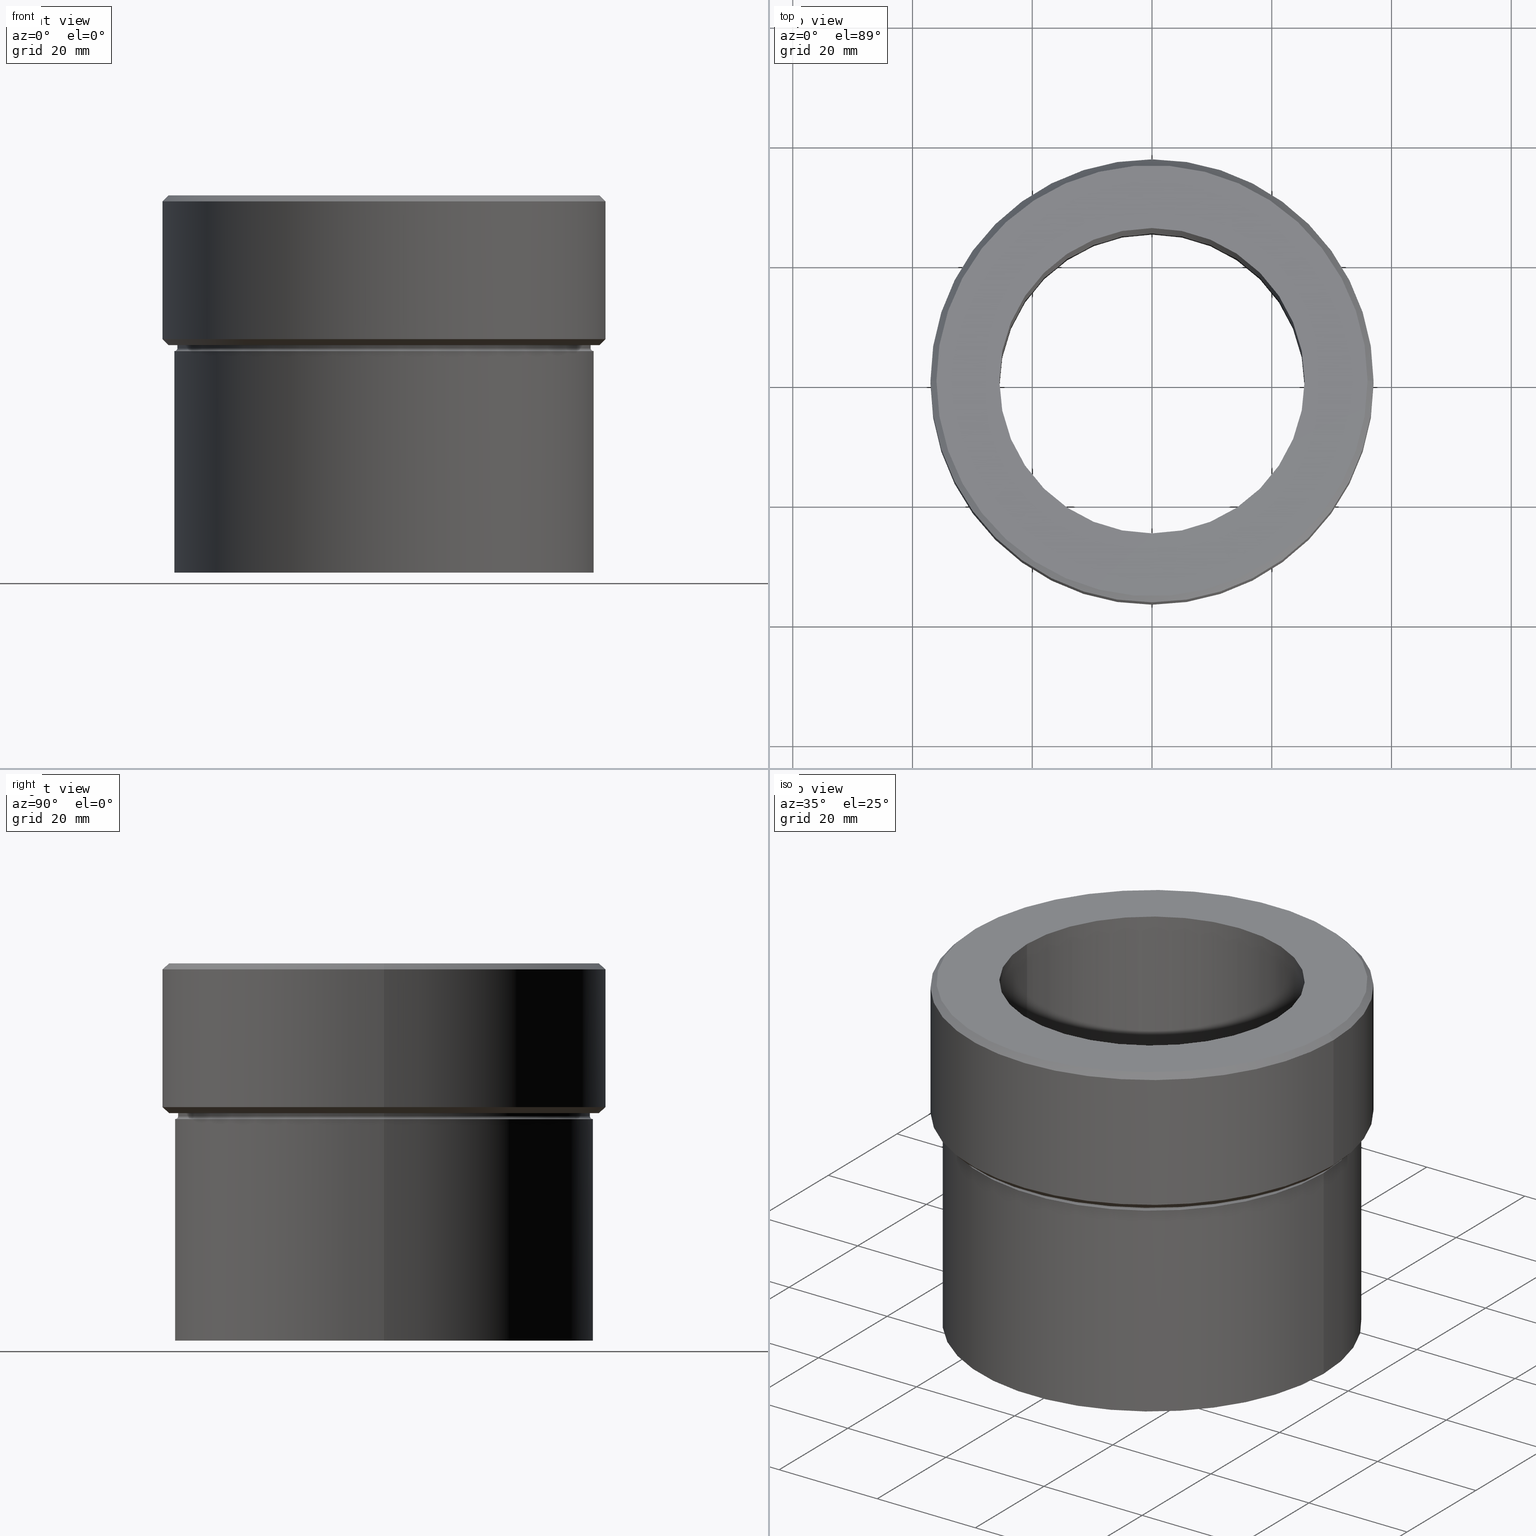
[diagram: canonical four-view strip — front | top / right | iso, engineering-drawing reading convention]
A machine part, canonical four-view strip (front | top / right | iso — engineering-drawing reading convention). The complete STEP part file that produces these views, byte-faithful:
ISO-10303-21;
HEADER;
FILE_DESCRIPTION (( 'STEP AP203' ),
    '1' );
FILE_NAME ('8586.STEP',
    '2024-01-08T12:23:47',
    ( '' ),
    ( '' ),
    'SwSTEP 2.0',
    'SolidWorks 2019',
    '' );
FILE_SCHEMA (( 'CONFIG_CONTROL_DESIGN' ));
ENDSEC;

DATA;
#1 = FACE_OUTER_BOUND ( 'NONE', #360, .T. ) ;
#2 = ORIENTED_EDGE ( 'NONE', *, *, #18, .T. ) ;
#3 = FACE_OUTER_BOUND ( 'NONE', #245, .T. ) ;
#4 = EDGE_CURVE ( 'NONE', #83, #497, #168, .T. ) ;
#5 = CONICAL_SURFACE ( 'NONE', #395, 37.00000000000000000, 0.7853981633974517207 ) ;
#6 = ORIENTED_EDGE ( 'NONE', *, *, #334, .T. ) ;
#7 = CARTESIAN_POINT ( 'NONE',  ( 0.000000000000000000, 0.000000000000000000, -0.9999999999999870104 ) ) ;
#8 = ORIENTED_EDGE ( 'NONE', *, *, #285, .F. ) ;
#9 = DIRECTION ( 'NONE',  ( 1.000000000000000000, 0.000000000000000000, 0.000000000000000000 ) ) ;
#10 = ORIENTED_EDGE ( 'NONE', *, *, #242, .F. ) ;
#11 = PERSON_AND_ORGANIZATION ( #431, #462 ) ;
#12 = CARTESIAN_POINT ( 'NONE',  ( 25.50000000000000000, 0.000000000000000000, -63.00000000000000000 ) ) ;
#13 = EDGE_CURVE ( 'NONE', #233, #197, #140, .T. ) ;
#14 = PERSON_AND_ORGANIZATION_ROLE ( 'classification_officer' ) ;
#15 = DIRECTION ( 'NONE',  ( -0.000000000000000000, -0.000000000000000000, 1.000000000000000000 ) ) ;
#16 = PLANE ( 'NONE',  #512 ) ;
#17 = APPROVAL_DATE_TIME ( #291, #391 ) ;
#18 = EDGE_CURVE ( 'NONE', #502, #113, #528, .T. ) ;
#19 = CARTESIAN_POINT ( 'NONE',  ( -35.00000000000000000, 4.286263797015736496E-15, -63.00000000000000000 ) ) ;
#20 = VECTOR ( 'NONE', #241, 1000.000000000000000 ) ;
#21 = AXIS2_PLACEMENT_3D ( 'NONE', #22, #100, #174 ) ;
#22 = CARTESIAN_POINT ( 'NONE',  ( 0.000000000000000000, 0.000000000000000000, 0.000000000000000000 ) ) ;
#23 = FACE_OUTER_BOUND ( 'NONE', #148, .T. ) ;
#24 = ORIENTED_EDGE ( 'NONE', *, *, #231, .T. ) ;
#25 = DATE_AND_TIME ( #235, #381 ) ;
#26 = CARTESIAN_POINT ( 'NONE',  ( 0.000000000000000000, 0.000000000000000000, -63.00000000000000000 ) ) ;
#27 = ADVANCED_FACE ( 'NONE', ( #336 ), #296, .T. ) ;
#28 = CIRCLE ( 'NONE', #97, 34.50000000000000000 ) ;
#29 = DIRECTION ( 'NONE',  ( 1.000000000000000000, 0.000000000000000000, 0.000000000000000000 ) ) ;
#30 = CIRCLE ( 'NONE', #141, 34.50000000000000000 ) ;
#31 = VERTEX_POINT ( 'NONE', #263 ) ;
#32 = FACE_OUTER_BOUND ( 'NONE', #315, .T. ) ;
#33 = PRODUCT_DEFINITION_SHAPE ( 'NONE', 'NONE',  #170 ) ;
#34 = DIRECTION ( 'NONE',  ( 1.000000000000000000, 0.000000000000000000, 0.000000000000000000 ) ) ;
#35 = PRODUCT_RELATED_PRODUCT_CATEGORY ( 'detail', '', ( #445 ) ) ;
#36 = ORIENTED_EDGE ( 'NONE', *, *, #4, .F. ) ;
#37 = DIRECTION ( 'NONE',  ( -0.000000000000000000, -0.000000000000000000, 1.000000000000000000 ) ) ;
#38 = DIRECTION ( 'NONE',  ( 1.000000000000000000, 0.000000000000000000, 0.000000000000000000 ) ) ;
#39 = LOCAL_TIME ( 13, 23, 47.00000000000000000, #176 ) ;
#40 = CARTESIAN_POINT ( 'NONE',  ( 34.50000000000000000, 0.000000000000000000, -25.00000000000000000 ) ) ;
#41 = VERTEX_POINT ( 'NONE', #53 ) ;
#42 = APPROVAL ( #132, 'NEUR�EN�' ) ;
#43 = DIRECTION ( 'NONE',  ( 0.000000000000000000, 0.000000000000000000, -1.000000000000000000 ) ) ;
#44 = EDGE_LOOP ( 'NONE', ( #358, #520, #109, #105 ) ) ;
#45 = LINE ( 'NONE', #450, #20 ) ;
#46 = EDGE_LOOP ( 'NONE', ( #279, #518, #448, #405 ) ) ;
#47 = AXIS2_PLACEMENT_3D ( 'NONE', #187, #154, #355 ) ;
#48 = CARTESIAN_POINT ( 'NONE',  ( 0.000000000000000000, 0.000000000000000000, -80.00000000000000000 ) ) ;
#49 = EDGE_LOOP ( 'NONE', ( #396, #456 ) ) ;
#50 = FACE_OUTER_BOUND ( 'NONE', #118, .T. ) ;
#51 = EDGE_CURVE ( 'NONE', #41, #31, #216, .T. ) ;
#52 = PERSON_AND_ORGANIZATION_ROLE ( 'design_supplier' ) ;
#53 = CARTESIAN_POINT ( 'NONE',  ( 36.00000000000002132, 4.469960816887840007E-15, 0.000000000000000000 ) ) ;
#54 = CONICAL_SURFACE ( 'NONE', #388, 36.00000000000002132, 0.7853981633974447263 ) ;
#55 = AXIS2_PLACEMENT_3D ( 'NONE', #147, #523, #68 ) ;
#56 = FACE_BOUND ( 'NONE', #439, .T. ) ;
#57 = AXIS2_PLACEMENT_3D ( 'NONE', #180, #134, #420 ) ;
#58 = CYLINDRICAL_SURFACE ( 'NONE', #209, 34.50000000000000000 ) ;
#59 = EDGE_CURVE ( 'NONE', #83, #390, #254, .T. ) ;
#60 = APPLICATION_PROTOCOL_DEFINITION ( 'international standard', 'config_control_design', 1994, #62 ) ;
#61 = DIRECTION ( 'NONE',  ( -1.000000000000000000, 0.000000000000000000, -0.000000000000000000 ) ) ;
#62 = APPLICATION_CONTEXT ( 'configuration controlled 3d designs of mechanical parts and assemblies' ) ;
#63 = CARTESIAN_POINT ( 'NONE',  ( 0.000000000000000000, 0.000000000000000000, 0.000000000000000000 ) ) ;
#64 = VECTOR ( 'NONE', #484, 1000.000000000000000 ) ;
#65 = CIRCLE ( 'NONE', #503, 34.50000000000000000 ) ;
#66 = CARTESIAN_POINT ( 'NONE',  ( 25.50000000000000000, 0.000000000000000000, 0.000000000000000000 ) ) ;
#67 = DATE_TIME_ROLE ( 'classification_date' ) ;
#68 = DIRECTION ( 'NONE',  ( -1.000000000000000000, 0.000000000000000000, 0.000000000000000000 ) ) ;
#69 = EDGE_CURVE ( 'NONE', #313, #274, #444, .T. ) ;
#70 = LINE ( 'NONE', #232, #412 ) ;
#71 = ORIENTED_EDGE ( 'NONE', *, *, #350, .T. ) ;
#72 = AXIS2_PLACEMENT_3D ( 'NONE', #399, #104, #389 ) ;
#73 = DIRECTION ( 'NONE',  ( -0.7071067811865500152, 8.659560562354962440E-17, 0.7071067811865451302 ) ) ;
#74 = VECTOR ( 'NONE', #499, 1000.000000000000000 ) ;
#75 = CC_DESIGN_PERSON_AND_ORGANIZATION_ASSIGNMENT ( #297, #91, ( #170 ) ) ;
#76 = CARTESIAN_POINT ( 'NONE',  ( -25.50000000000000000, 3.122849337825750222E-15, 0.000000000000000000 ) ) ;
#77 = VERTEX_POINT ( 'NONE', #12 ) ;
#78 = FACE_OUTER_BOUND ( 'NONE', #454, .T. ) ;
#79 = ORIENTED_EDGE ( 'NONE', *, *, #18, .F. ) ;
#80 = DIRECTION ( 'NONE',  ( -0.000000000000000000, -0.000000000000000000, 1.000000000000000000 ) ) ;
#81 = ORIENTED_EDGE ( 'NONE', *, *, #514, .F. ) ;
#82 = DIRECTION ( 'NONE',  ( 1.000000000000000000, 0.000000000000000000, 0.000000000000000000 ) ) ;
#83 = VERTEX_POINT ( 'NONE', #378 ) ;
#84 = DIRECTION ( 'NONE',  ( -0.000000000000000000, -0.000000000000000000, 1.000000000000000000 ) ) ;
#85 = ORIENTED_EDGE ( 'NONE', *, *, #192, .T. ) ;
#86 = CYLINDRICAL_SURFACE ( 'NONE', #495, 25.50000000000000000 ) ;
#87 = ORIENTED_EDGE ( 'NONE', *, *, #468, .F. ) ;
#88 = APPROVAL_DATE_TIME ( #501, #42 ) ;
#89 = ADVANCED_FACE ( 'NONE', ( #261 ), #306, .T. ) ;
#90 = DIRECTION ( 'NONE',  ( -0.000000000000000000, -0.000000000000000000, 1.000000000000000000 ) ) ;
#91 = PERSON_AND_ORGANIZATION_ROLE ( 'creator' ) ;
#92 = DIRECTION ( 'NONE',  ( 0.000000000000000000, 0.000000000000000000, -1.000000000000000000 ) ) ;
#93 = CALENDAR_DATE ( 2024, 8, 1 ) ;
#94 = CARTESIAN_POINT ( 'NONE',  ( 0.000000000000000000, 0.000000000000000000, -25.00000000000000000 ) ) ;
#95 = VECTOR ( 'NONE', #207, 1000.000000000000114 ) ;
#96 = EDGE_CURVE ( 'NONE', #251, #400, #65, .T. ) ;
#97 = AXIS2_PLACEMENT_3D ( 'NONE', #151, #228, #102 ) ;
#98 = COORDINATED_UNIVERSAL_TIME_OFFSET ( 1, 0, .AHEAD. ) ;
#99 = APPROVAL_PERSON_ORGANIZATION ( #332, #42, #461 ) ;
#100 = DIRECTION ( 'NONE',  ( -0.000000000000000000, -0.000000000000000000, 1.000000000000000000 ) ) ;
#101 = DIRECTION ( 'NONE',  ( 1.000000000000000000, 0.000000000000000000, 0.000000000000000000 ) ) ;
#102 = DIRECTION ( 'NONE',  ( 1.000000000000000000, 0.000000000000000000, 0.000000000000000000 ) ) ;
#103 = ADVANCED_FACE ( 'NONE', ( #427 ), #387, .T. ) ;
#104 = DIRECTION ( 'NONE',  ( 0.000000000000000000, 0.000000000000000000, -1.000000000000000000 ) ) ;
#105 = ORIENTED_EDGE ( 'NONE', *, *, #309, .F. ) ;
#106 = CARTESIAN_POINT ( 'NONE',  ( 0.000000000000000000, 0.000000000000000000, -23.99999999999997158 ) ) ;
#107 = PERSON_AND_ORGANIZATION ( #431, #462 ) ;
#108 = DIRECTION ( 'NONE',  ( -1.000000000000000000, 0.000000000000000000, 0.000000000000000000 ) ) ;
#109 = ORIENTED_EDGE ( 'NONE', *, *, #13, .F. ) ;
#110 = EDGE_CURVE ( 'NONE', #365, #324, #175, .T. ) ;
#111 = CARTESIAN_POINT ( 'NONE',  ( -25.50000000000000000, 3.122849337825750222E-15, -63.00000000000000000 ) ) ;
#112 = CIRCLE ( 'NONE', #486, 35.00000000000000000 ) ;
#113 = VERTEX_POINT ( 'NONE', #177 ) ;
#114 = CC_DESIGN_APPROVAL ( #391, ( #170 ) ) ;
#115 = CARTESIAN_POINT ( 'NONE',  ( 35.00000000000000000, 0.000000000000000000, -25.50000000000000000 ) ) ;
#116 = ORIENTED_EDGE ( 'NONE', *, *, #69, .F. ) ;
#117 = LINE ( 'NONE', #250, #95 ) ;
#118 = EDGE_LOOP ( 'NONE', ( #79, #478, #125, #87 ) ) ;
#119 = FACE_OUTER_BOUND ( 'NONE', #213, .T. ) ;
#120 = CC_DESIGN_DATE_AND_TIME_ASSIGNMENT ( #429, #386, ( #170 ) ) ;
#121 = ORIENTED_EDGE ( 'NONE', *, *, #406, .T. ) ;
#122 = CIRCLE ( 'NONE', #234, 0.5000000000000004441 ) ;
#123 = UNCERTAINTY_MEASURE_WITH_UNIT (LENGTH_MEASURE( 1.000000000000000082E-05 ), #384, 'distance_accuracy_value', 'NONE');
#124 = DIRECTION ( 'NONE',  ( -1.000000000000000000, 1.224646799147349509E-16, 0.000000000000000000 ) ) ;
#125 = ORIENTED_EDGE ( 'NONE', *, *, #302, .F. ) ;
#126 = CARTESIAN_POINT ( 'NONE',  ( 0.000000000000000000, 0.000000000000000000, 0.000000000000000000 ) ) ;
#127 = EDGE_LOOP ( 'NONE', ( #36, #375, #6, #311 ) ) ;
#128 = APPROVAL ( #189, 'NEUR�EN�' ) ;
#129 = PERSON_AND_ORGANIZATION_ROLE ( 'design_owner' ) ;
#130 = ORIENTED_EDGE ( 'NONE', *, *, #51, .T. ) ;
#131 = LOCAL_TIME ( 13, 23, 47.00000000000000000, #98 ) ;
#132 = APPROVAL_STATUS ( 'not_yet_approved' ) ;
#133 = CARTESIAN_POINT ( 'NONE',  ( 0.000000000000000000, 0.000000000000000000, 0.000000000000000000 ) ) ;
#134 = DIRECTION ( 'NONE',  ( 0.000000000000000000, 0.000000000000000000, 1.000000000000000000 ) ) ;
#135 = ADVANCED_FACE ( 'NONE', ( #179 ), #326, .F. ) ;
#136 = DIRECTION ( 'NONE',  ( 0.7071067811865451302, 8.659560562354904508E-17, -0.7071067811865500152 ) ) ;
#137 = PERSON_AND_ORGANIZATION ( #431, #462 ) ;
#138 = DIRECTION ( 'NONE',  ( 0.000000000000000000, 0.000000000000000000, -1.000000000000000000 ) ) ;
#139 = AXIS2_PLACEMENT_3D ( 'NONE', #408, #163, #82 ) ;
#140 = CIRCLE ( 'NONE', #414, 35.00000000000000000 ) ;
#141 = AXIS2_PLACEMENT_3D ( 'NONE', #492, #453, #374 ) ;
#142 = APPLICATION_PROTOCOL_DEFINITION ( 'international standard', 'config_control_design', 1994, #169 ) ;
#143 = DIRECTION ( 'NONE',  ( 1.000000000000000000, 0.000000000000000000, 0.000000000000000000 ) ) ;
#144 = SHAPE_DEFINITION_REPRESENTATION ( #33, #413 ) ;
#145 = CARTESIAN_POINT ( 'NONE',  ( 0.000000000000000000, 0.000000000000000000, 0.000000000000000000 ) ) ;
#146 = ADVANCED_FACE ( 'NONE', ( #507 ), #58, .T. ) ;
#147 = CARTESIAN_POINT ( 'NONE',  ( 0.000000000000000000, 0.000000000000000000, -23.99999999999997158 ) ) ;
#148 = EDGE_LOOP ( 'NONE', ( #481, #368 ) ) ;
#149 = DIRECTION ( 'NONE',  ( 0.000000000000000000, 0.000000000000000000, -1.000000000000000000 ) ) ;
#150 = VERTEX_POINT ( 'NONE', #383 ) ;
#151 = CARTESIAN_POINT ( 'NONE',  ( 0.000000000000000000, 0.000000000000000000, -25.50000000000000000 ) ) ;
#152 = ADVANCED_FACE ( 'NONE', ( #222, #421 ), #16, .T. ) ;
#153 = ORIENTED_EDGE ( 'NONE', *, *, #480, .F. ) ;
#154 = DIRECTION ( 'NONE',  ( -0.000000000000000000, -0.000000000000000000, 1.000000000000000000 ) ) ;
#155 = VERTEX_POINT ( 'NONE', #19 ) ;
#156 = VECTOR ( 'NONE', #136, 1000.000000000000114 ) ;
#157 = CARTESIAN_POINT ( 'NONE',  ( -34.50000000000000000, 4.225031457058368922E-15, -25.00000000000000000 ) ) ;
#158 = CARTESIAN_POINT ( 'NONE',  ( 0.000000000000000000, 0.000000000000000000, -0.9999999999999870104 ) ) ;
#159 = ORIENTED_EDGE ( 'NONE', *, *, #514, .T. ) ;
#160 = ADVANCED_FACE ( 'NONE', ( #181 ), #54, .T. ) ;
#161 = DIRECTION ( 'NONE',  ( -0.000000000000000000, -0.000000000000000000, 1.000000000000000000 ) ) ;
#162 = ORIENTED_EDGE ( 'NONE', *, *, #440, .F. ) ;
#163 = DIRECTION ( 'NONE',  ( -0.000000000000000000, -0.000000000000000000, 1.000000000000000000 ) ) ;
#164 = VECTOR ( 'NONE', #392, 1000.000000000000114 ) ;
#165 = EDGE_LOOP ( 'NONE', ( #162, #287, #238, #81 ) ) ;
#166 = CIRCLE ( 'NONE', #236, 0.5000000000000004441 ) ;
#167 = DIRECTION ( 'NONE',  ( 1.000000000000000000, 0.000000000000000000, 0.000000000000000000 ) ) ;
#168 = LINE ( 'NONE', #321, #460 ) ;
#169 = APPLICATION_CONTEXT ( 'configuration controlled 3d designs of mechanical parts and assemblies' ) ;
#170 = PRODUCT_DEFINITION ( 'NEZN�M�', '', #354, #407 ) ;
#171 = CALENDAR_DATE ( 2024, 8, 1 ) ;
#172 = ORIENTED_EDGE ( 'NONE', *, *, #506, .T. ) ;
#173 = DIRECTION ( 'NONE',  ( 0.000000000000000000, 0.000000000000000000, -1.000000000000000000 ) ) ;
#174 = DIRECTION ( 'NONE',  ( 1.000000000000000000, 0.000000000000000000, 0.000000000000000000 ) ) ;
#175 = CIRCLE ( 'NONE', #281, 34.50000000000000000 ) ;
#176 = COORDINATED_UNIVERSAL_TIME_OFFSET ( 1, 0, .AHEAD. ) ;
#177 = CARTESIAN_POINT ( 'NONE',  ( 35.99999999999996447, 0.000000000000000000, -25.00000000000000000 ) ) ;
#178 = EDGE_CURVE ( 'NONE', #41, #150, #494, .T. ) ;
#179 = FACE_OUTER_BOUND ( 'NONE', #230, .T. ) ;
#180 = CARTESIAN_POINT ( 'NONE',  ( 0.000000000000000000, 0.000000000000000000, 0.000000000000000000 ) ) ;
#181 = FACE_OUTER_BOUND ( 'NONE', #46, .T. ) ;
#182 = AXIS2_PLACEMENT_3D ( 'NONE', #298, #215, #380 ) ;
#183 = CIRCLE ( 'NONE', #353, 25.50000000000000000 ) ;
#184 = DIRECTION ( 'NONE',  ( -1.000000000000000000, 0.000000000000000000, 0.000000000000000000 ) ) ;
#185 = ADVANCED_FACE ( 'NONE', ( #50 ), #352, .T. ) ;
#186 = APPROVAL_ROLE ( '' ) ;
#187 = CARTESIAN_POINT ( 'NONE',  ( 0.000000000000000000, 0.000000000000000000, -23.99999999999997158 ) ) ;
#188 = EDGE_LOOP ( 'NONE', ( #269, #485 ) ) ;
#189 = APPROVAL_STATUS ( 'not_yet_approved' ) ;
#190 = LINE ( 'NONE', #482, #164 ) ;
#191 = AXIS2_PLACEMENT_3D ( 'NONE', #203, #288, #458 ) ;
#192 = EDGE_CURVE ( 'NONE', #324, #365, #28, .T. ) ;
#193 = CARTESIAN_POINT ( 'NONE',  ( 35.00000000000000000, 0.000000000000000000, -63.00000000000000000 ) ) ;
#194 = CC_DESIGN_APPROVAL ( #128, ( #227 ) ) ;
#195 = ORIENTED_EDGE ( 'NONE', *, *, #382, .F. ) ;
#196 = CARTESIAN_POINT ( 'NONE',  ( 0.000000000000000000, 0.000000000000000000, 0.000000000000000000 ) ) ;
#197 = VERTEX_POINT ( 'NONE', #348 ) ;
#198 = CARTESIAN_POINT ( 'NONE',  ( -34.50000000000000000, 4.225031457058368922E-15, -25.50000000000000000 ) ) ;
#199 = ORIENTED_EDGE ( 'NONE', *, *, #13, .T. ) ;
#200 = DIRECTION ( 'NONE',  ( -0.000000000000000000, -0.000000000000000000, 1.000000000000000000 ) ) ;
#201 = ORIENTED_EDGE ( 'NONE', *, *, #285, .T. ) ;
#202 = CC_DESIGN_PERSON_AND_ORGANIZATION_ASSIGNMENT ( #379, #14, ( #227 ) ) ;
#203 = CARTESIAN_POINT ( 'NONE',  ( 0.000000000000000000, 0.000000000000000000, -25.50000000000000000 ) ) ;
#204 = ORIENTED_EDGE ( 'NONE', *, *, #350, .F. ) ;
#205 = CARTESIAN_POINT ( 'NONE',  ( -34.50000000000000000, 4.225031457058368922E-15, 0.000000000000000000 ) ) ;
#206 = VERTEX_POINT ( 'NONE', #111 ) ;
#207 = DIRECTION ( 'NONE',  ( 0.7071067811865500152, 0.000000000000000000, 0.7071067811865451302 ) ) ;
#208 = EDGE_CURVE ( 'NONE', #150, #497, #190, .T. ) ;
#209 = AXIS2_PLACEMENT_3D ( 'NONE', #145, #219, #432 ) ;
#210 = EDGE_LOOP ( 'NONE', ( #10, #419, #393, #459 ) ) ;
#211 = AXIS2_PLACEMENT_3D ( 'NONE', #487, #214, #101 ) ;
#212 = CARTESIAN_POINT ( 'NONE',  ( -35.99999999999996447, 4.469960816887836852E-15, -25.00000000000000000 ) ) ;
#213 = EDGE_LOOP ( 'NONE', ( #329, #437, #121, #243 ) ) ;
#214 = DIRECTION ( 'NONE',  ( -0.000000000000000000, -0.000000000000000000, 1.000000000000000000 ) ) ;
#215 = DIRECTION ( 'NONE',  ( -0.000000000000000000, -0.000000000000000000, 1.000000000000000000 ) ) ;
#216 = LINE ( 'NONE', #300, #156 ) ;
#217 = EDGE_CURVE ( 'NONE', #365, #400, #436, .T. ) ;
#218 =( NAMED_UNIT ( * ) PLANE_ANGLE_UNIT ( ) SI_UNIT ( $, .RADIAN. ) );
#219 = DIRECTION ( 'NONE',  ( -0.000000000000000000, -0.000000000000000000, 1.000000000000000000 ) ) ;
#220 = MANIFOLD_SOLID_BREP ( 'Odebrat vysunut�m1', #370 ) ;
#221 = PERSON_AND_ORGANIZATION ( #431, #462 ) ;
#222 = FACE_BOUND ( 'NONE', #49, .T. ) ;
#223 = CC_DESIGN_DATE_AND_TIME_ASSIGNMENT ( #347, #67, ( #227 ) ) ;
#224 = DIRECTION ( 'NONE',  ( 0.000000000000000000, 0.000000000000000000, -1.000000000000000000 ) ) ;
#225 = AXIS2_PLACEMENT_3D ( 'NONE', #435, #314, #447 ) ;
#226 = AXIS2_PLACEMENT_3D ( 'NONE', #305, #513, #467 ) ;
#227 = SECURITY_CLASSIFICATION ( '', '', #466 ) ;
#228 = DIRECTION ( 'NONE',  ( -0.000000000000000000, -0.000000000000000000, 1.000000000000000000 ) ) ;
#229 = CARTESIAN_POINT ( 'NONE',  ( 35.00000000000000000, 0.000000000000000000, 0.000000000000000000 ) ) ;
#230 = EDGE_LOOP ( 'NONE', ( #524, #333, #159, #271 ) ) ;
#231 = EDGE_CURVE ( 'NONE', #77, #206, #344, .T. ) ;
#232 = CARTESIAN_POINT ( 'NONE',  ( 25.50000000000000000, 0.000000000000000000, -80.00000000000000000 ) ) ;
#233 = VERTEX_POINT ( 'NONE', #239 ) ;
#234 = AXIS2_PLACEMENT_3D ( 'NONE', #115, #282, #43 ) ;
#235 = CALENDAR_DATE ( 2024, 8, 1 ) ;
#236 = AXIS2_PLACEMENT_3D ( 'NONE', #455, #496, #124 ) ;
#237 = DIRECTION ( 'NONE',  ( -0.000000000000000000, -0.000000000000000000, 1.000000000000000000 ) ) ;
#238 = ORIENTED_EDGE ( 'NONE', *, *, #309, .T. ) ;
#239 = CARTESIAN_POINT ( 'NONE',  ( 35.00000000000000000, 0.000000000000000000, -26.00000000000000000 ) ) ;
#240 = ORIENTED_EDGE ( 'NONE', *, *, #480, .T. ) ;
#241 = DIRECTION ( 'NONE',  ( -0.000000000000000000, -0.000000000000000000, 1.000000000000000000 ) ) ;
#242 = EDGE_CURVE ( 'NONE', #502, #83, #273, .T. ) ;
#243 = ORIENTED_EDGE ( 'NONE', *, *, #334, .F. ) ;
#244 = CARTESIAN_POINT ( 'NONE',  ( 37.00000000000000000, 0.000000000000000000, -23.99999999999997158 ) ) ;
#245 = EDGE_LOOP ( 'NONE', ( #195, #85, #248, #463 ) ) ;
#246 = LOCAL_TIME ( 13, 23, 47.00000000000000000, #304 ) ;
#247 = CARTESIAN_POINT ( 'NONE',  ( 34.50000000000000000, 0.000000000000000000, -25.50000000000000000 ) ) ;
#248 = ORIENTED_EDGE ( 'NONE', *, *, #217, .T. ) ;
#249 = ADVANCED_FACE ( 'NONE', ( #276 ), #5, .T. ) ;
#250 = CARTESIAN_POINT ( 'NONE',  ( 37.00000000000000000, 0.000000000000000000, -23.99999999999997158 ) ) ;
#251 = VERTEX_POINT ( 'NONE', #157 ) ;
#252 = VECTOR ( 'NONE', #307, 1000.000000000000000 ) ;
#253 = FACE_OUTER_BOUND ( 'NONE', #289, .T. ) ;
#254 = CIRCLE ( 'NONE', #226, 37.00000000000000000 ) ;
#255 = ORIENTED_EDGE ( 'NONE', *, *, #110, .T. ) ;
#256 = VECTOR ( 'NONE', #200, 1000.000000000000000 ) ;
#257 = CARTESIAN_POINT ( 'NONE',  ( 0.000000000000000000, 37.00000000000000000, -25.00000000000000000 ) ) ;
#258 = DIRECTION ( 'NONE',  ( 1.000000000000000000, 0.000000000000000000, 0.000000000000000000 ) ) ;
#259 = CARTESIAN_POINT ( 'NONE',  ( 0.000000000000000000, 0.000000000000000000, -25.00000000000000000 ) ) ;
#260 = EDGE_CURVE ( 'NONE', #150, #41, #361, .T. ) ;
#261 = FACE_OUTER_BOUND ( 'NONE', #44, .T. ) ;
#262 = CIRCLE ( 'NONE', #139, 35.00000000000000000 ) ;
#263 = CARTESIAN_POINT ( 'NONE',  ( 37.00000000000000000, 0.000000000000000000, -0.9999999999999870104 ) ) ;
#264 = EDGE_CURVE ( 'NONE', #113, #502, #290, .T. ) ;
#265 = DIRECTION ( 'NONE',  ( 1.000000000000000000, 0.000000000000000000, 0.000000000000000000 ) ) ;
#266 = CARTESIAN_POINT ( 'NONE',  ( 34.50000000000000000, 0.000000000000000000, 0.000000000000000000 ) ) ;
#267 = AXIS2_PLACEMENT_3D ( 'NONE', #133, #465, #509 ) ;
#268 = DIRECTION ( 'NONE',  ( -1.000000000000000000, 0.000000000000000000, 0.000000000000000000 ) ) ;
#269 = ORIENTED_EDGE ( 'NONE', *, *, #323, .F. ) ;
#270 = DIRECTION ( 'NONE',  ( 0.000000000000000000, -0.000000000000000000, 1.000000000000000000 ) ) ;
#271 = ORIENTED_EDGE ( 'NONE', *, *, #376, .F. ) ;
#272 = ADVANCED_FACE ( 'NONE', ( #32 ), #442, .T. ) ;
#273 = LINE ( 'NONE', #441, #472 ) ;
#274 = VERTEX_POINT ( 'NONE', #66 ) ;
#275 = AXIS2_PLACEMENT_3D ( 'NONE', #257, #173, #338 ) ;
#276 = FACE_OUTER_BOUND ( 'NONE', #210, .T. ) ;
#277 = CC_DESIGN_PERSON_AND_ORGANIZATION_ASSIGNMENT ( #11, #129, ( #445 ) ) ;
#278 = LINE ( 'NONE', #205, #256 ) ;
#279 = ORIENTED_EDGE ( 'NONE', *, *, #51, .F. ) ;
#280 = AXIS2_PLACEMENT_3D ( 'NONE', #346, #90, #258 ) ;
#281 = AXIS2_PLACEMENT_3D ( 'NONE', #385, #475, #423 ) ;
#282 = DIRECTION ( 'NONE',  ( 0.000000000000000000, -1.000000000000000000, 0.000000000000000000 ) ) ;
#283 = ORIENTED_EDGE ( 'NONE', *, *, #406, .F. ) ;
#284 =( GEOMETRIC_REPRESENTATION_CONTEXT ( 3 ) GLOBAL_UNCERTAINTY_ASSIGNED_CONTEXT ( ( #123 ) ) GLOBAL_UNIT_ASSIGNED_CONTEXT ( ( #384, #218, #508 ) ) REPRESENTATION_CONTEXT ( 'NONE', 'WORKASPACE' ) );
#285 = EDGE_CURVE ( 'NONE', #274, #313, #426, .T. ) ;
#286 = CARTESIAN_POINT ( 'NONE',  ( 0.000000000000000000, 0.000000000000000000, -80.00000000000000000 ) ) ;
#287 = ORIENTED_EDGE ( 'NONE', *, *, #357, .T. ) ;
#288 = DIRECTION ( 'NONE',  ( -0.000000000000000000, -0.000000000000000000, 1.000000000000000000 ) ) ;
#289 = EDGE_LOOP ( 'NONE', ( #491, #443, #293, #199 ) ) ;
#290 = CIRCLE ( 'NONE', #72, 35.99999999999996447 ) ;
#291 = DATE_AND_TIME ( #424, #418 ) ;
#292 = AXIS2_PLACEMENT_3D ( 'NONE', #343, #504, #143 ) ;
#293 = ORIENTED_EDGE ( 'NONE', *, *, #376, .T. ) ;
#294 = PERSON_AND_ORGANIZATION_ROLE ( 'creator' ) ;
#295 = CC_DESIGN_PERSON_AND_ORGANIZATION_ASSIGNMENT ( #221, #294, ( #354 ) ) ;
#296 = CYLINDRICAL_SURFACE ( 'NONE', #292, 35.00000000000000000 ) ;
#297 = PERSON_AND_ORGANIZATION ( #431, #462 ) ;
#298 = CARTESIAN_POINT ( 'NONE',  ( 0.000000000000000000, 0.000000000000000000, 0.000000000000000000 ) ) ;
#299 = AXIS2_PLACEMENT_3D ( 'NONE', #196, #479, #268 ) ;
#300 = CARTESIAN_POINT ( 'NONE',  ( 36.00000000000002132, 4.408728476930474011E-15, 0.000000000000000000 ) ) ;
#301 = AXIS2_PLACEMENT_3D ( 'NONE', #158, #490, #9 ) ;
#302 = EDGE_CURVE ( 'NONE', #390, #83, #342, .T. ) ;
#303 = APPROVAL_PERSON_ORGANIZATION ( #107, #128, #186 ) ;
#304 = COORDINATED_UNIVERSAL_TIME_OFFSET ( 1, 0, .AHEAD. ) ;
#305 = CARTESIAN_POINT ( 'NONE',  ( 0.000000000000000000, 0.000000000000000000, -23.99999999999997158 ) ) ;
#306 = CYLINDRICAL_SURFACE ( 'NONE', #267, 35.00000000000000000 ) ;
#307 = DIRECTION ( 'NONE',  ( -0.000000000000000000, -0.000000000000000000, 1.000000000000000000 ) ) ;
#308 = AXIS2_PLACEMENT_3D ( 'NONE', #430, #337, #265 ) ;
#309 = EDGE_CURVE ( 'NONE', #331, #233, #356, .T. ) ;
#310 = CARTESIAN_POINT ( 'NONE',  ( 0.000000000000000000, 0.000000000000000000, 0.000000000000000000 ) ) ;
#311 = ORIENTED_EDGE ( 'NONE', *, *, #457, .T. ) ;
#312 = DIRECTION ( 'NONE',  ( -0.000000000000000000, -0.000000000000000000, 1.000000000000000000 ) ) ;
#313 = VERTEX_POINT ( 'NONE', #76 ) ;
#314 = DIRECTION ( 'NONE',  ( -0.000000000000000000, -0.000000000000000000, 1.000000000000000000 ) ) ;
#315 = EDGE_LOOP ( 'NONE', ( #493, #130, #283, #373 ) ) ;
#316 = CIRCLE ( 'NONE', #301, 37.00000000000000000 ) ;
#317 = CC_DESIGN_PERSON_AND_ORGANIZATION_ASSIGNMENT ( #464, #52, ( #354 ) ) ;
#318 = LINE ( 'NONE', #330, #74 ) ;
#319 = ORIENTED_EDGE ( 'NONE', *, *, #264, .T. ) ;
#320 = DIRECTION ( 'NONE',  ( 1.000000000000000000, 0.000000000000000000, 0.000000000000000000 ) ) ;
#321 = CARTESIAN_POINT ( 'NONE',  ( -37.00000000000000000, 4.531193156845206793E-15, 0.000000000000000000 ) ) ;
#322 = DIRECTION ( 'NONE',  ( 1.000000000000000000, 0.000000000000000000, 0.000000000000000000 ) ) ;
#323 = EDGE_CURVE ( 'NONE', #331, #155, #112, .T. ) ;
#324 = VERTEX_POINT ( 'NONE', #198 ) ;
#325 = AXIS2_PLACEMENT_3D ( 'NONE', #126, #37, #320 ) ;
#326 = TOROIDAL_SURFACE ( 'NONE', #308, 35.00000000000000000, 0.5000000000000000000 ) ;
#327 = AXIS2_PLACEMENT_3D ( 'NONE', #477, #149, #108 ) ;
#328 = DIRECTION ( 'NONE',  ( 0.000000000000000000, 0.000000000000000000, -1.000000000000000000 ) ) ;
#329 = ORIENTED_EDGE ( 'NONE', *, *, #302, .T. ) ;
#330 = CARTESIAN_POINT ( 'NONE',  ( -25.50000000000000000, 3.122849337825750222E-15, -80.00000000000000000 ) ) ;
#331 = VERTEX_POINT ( 'NONE', #193 ) ;
#332 = PERSON_AND_ORGANIZATION ( #431, #462 ) ;
#333 = ORIENTED_EDGE ( 'NONE', *, *, #417, .T. ) ;
#334 = EDGE_CURVE ( 'NONE', #390, #31, #476, .T. ) ;
#335 = APPROVAL_STATUS ( 'not_yet_approved' ) ;
#336 = FACE_OUTER_BOUND ( 'NONE', #165, .T. ) ;
#337 = DIRECTION ( 'NONE',  ( -0.000000000000000000, -0.000000000000000000, 1.000000000000000000 ) ) ;
#338 = DIRECTION ( 'NONE',  ( -1.000000000000000000, 0.000000000000000000, -0.000000000000000000 ) ) ;
#339 = ADVANCED_FACE ( 'NONE', ( #525, #23 ), #519, .T. ) ;
#340 = CARTESIAN_POINT ( 'NONE',  ( 0.000000000000000000, 35.00000000000000000, -63.00000000000000000 ) ) ;
#341 = MECHANICAL_CONTEXT ( 'NONE', #62, 'mechanical' ) ;
#342 = CIRCLE ( 'NONE', #55, 37.00000000000000000 ) ;
#343 = CARTESIAN_POINT ( 'NONE',  ( 0.000000000000000000, 0.000000000000000000, 0.000000000000000000 ) ) ;
#344 = CIRCLE ( 'NONE', #327, 25.50000000000000000 ) ;
#345 = APPROVAL_PERSON_ORGANIZATION ( #137, #391, #470 ) ;
#346 = CARTESIAN_POINT ( 'NONE',  ( 0.000000000000000000, 0.000000000000000000, 0.000000000000000000 ) ) ;
#347 = DATE_AND_TIME ( #93, #39 ) ;
#348 = CARTESIAN_POINT ( 'NONE',  ( -35.00000000000000000, 4.286263797015736496E-15, -26.00000000000000000 ) ) ;
#349 = ORIENTED_EDGE ( 'NONE', *, *, #506, .F. ) ;
#350 = EDGE_CURVE ( 'NONE', #77, #274, #70, .T. ) ;
#351 = DIRECTION ( 'NONE',  ( -0.000000000000000000, -0.000000000000000000, 1.000000000000000000 ) ) ;
#352 = CONICAL_SURFACE ( 'NONE', #47, 37.00000000000000000, 0.7853981633974517207 ) ;
#353 = AXIS2_PLACEMENT_3D ( 'NONE', #367, #328, #402 ) ;
#354 = PRODUCT_DEFINITION_FORMATION_WITH_SPECIFIED_SOURCE ( 'LIBOVOLN�', '', #445, .NOT_KNOWN. ) ;
#355 = DIRECTION ( 'NONE',  ( 1.000000000000000000, 0.000000000000000000, 0.000000000000000000 ) ) ;
#356 = LINE ( 'NONE', #229, #64 ) ;
#357 = EDGE_CURVE ( 'NONE', #155, #331, #262, .T. ) ;
#358 = ORIENTED_EDGE ( 'NONE', *, *, #323, .T. ) ;
#359 = CARTESIAN_POINT ( 'NONE',  ( 37.00000000000000000, 0.000000000000000000, 0.000000000000000000 ) ) ;
#360 = EDGE_LOOP ( 'NONE', ( #24, #240, #500, #204 ) ) ;
#361 = CIRCLE ( 'NONE', #369, 36.00000000000002132 ) ;
#362 = DIRECTION ( 'NONE',  ( 0.000000000000000000, 0.000000000000000000, -1.000000000000000000 ) ) ;
#363 = ORIENTED_EDGE ( 'NONE', *, *, #366, .T. ) ;
#364 = CYLINDRICAL_SURFACE ( 'NONE', #469, 37.00000000000000000 ) ;
#365 = VERTEX_POINT ( 'NONE', #247 ) ;
#366 = EDGE_CURVE ( 'NONE', #206, #77, #183, .T. ) ;
#367 = CARTESIAN_POINT ( 'NONE',  ( 0.000000000000000000, 0.000000000000000000, -63.00000000000000000 ) ) ;
#368 = ORIENTED_EDGE ( 'NONE', *, *, #178, .T. ) ;
#369 = AXIS2_PLACEMENT_3D ( 'NONE', #517, #237, #521 ) ;
#370 = CLOSED_SHELL ( 'NONE', ( #498, #135, #272, #185, #89, #146, #434, #339, #103, #529, #398, #27, #152, #249, #160, #489, #451 ) ) ;
#371 = AXIS2_PLACEMENT_3D ( 'NONE', #48, #161, #322 ) ;
#372 = CYLINDRICAL_SURFACE ( 'NONE', #325, 34.50000000000000000 ) ;
#373 = ORIENTED_EDGE ( 'NONE', *, *, #208, .F. ) ;
#374 = DIRECTION ( 'NONE',  ( 1.000000000000000000, 0.000000000000000000, 0.000000000000000000 ) ) ;
#375 = ORIENTED_EDGE ( 'NONE', *, *, #59, .T. ) ;
#376 = EDGE_CURVE ( 'NONE', #365, #233, #122, .T. ) ;
#377 = CALENDAR_DATE ( 2024, 8, 1 ) ;
#378 = CARTESIAN_POINT ( 'NONE',  ( -37.00000000000000000, 4.531193156845206793E-15, -23.99999999999997158 ) ) ;
#379 = PERSON_AND_ORGANIZATION ( #431, #462 ) ;
#380 = DIRECTION ( 'NONE',  ( 1.000000000000000000, 0.000000000000000000, 0.000000000000000000 ) ) ;
#381 = LOCAL_TIME ( 13, 23, 47.00000000000000000, #515 ) ;
#382 = EDGE_CURVE ( 'NONE', #324, #251, #278, .T. ) ;
#383 = CARTESIAN_POINT ( 'NONE',  ( -36.00000000000002132, 0.000000000000000000, 0.000000000000000000 ) ) ;
#384 =( LENGTH_UNIT ( ) NAMED_UNIT ( * ) SI_UNIT ( .MILLI., .METRE. ) );
#385 = CARTESIAN_POINT ( 'NONE',  ( 0.000000000000000000, 0.000000000000000000, -25.50000000000000000 ) ) ;
#386 = DATE_TIME_ROLE ( 'creation_date' ) ;
#387 = CYLINDRICAL_SURFACE ( 'NONE', #21, 37.00000000000000000 ) ;
#388 = AXIS2_PLACEMENT_3D ( 'NONE', #63, #224, #184 ) ;
#389 = DIRECTION ( 'NONE',  ( -1.000000000000000000, 0.000000000000000000, 0.000000000000000000 ) ) ;
#390 = VERTEX_POINT ( 'NONE', #244 ) ;
#391 = APPROVAL ( #335, 'NEUR�EN�' ) ;
#392 = DIRECTION ( 'NONE',  ( -0.7071067811865451302, 0.000000000000000000, -0.7071067811865500152 ) ) ;
#393 = ORIENTED_EDGE ( 'NONE', *, *, #468, .T. ) ;
#394 = DIRECTION ( 'NONE',  ( -0.000000000000000000, -0.000000000000000000, 1.000000000000000000 ) ) ;
#395 = AXIS2_PLACEMENT_3D ( 'NONE', #106, #401, #29 ) ;
#396 = ORIENTED_EDGE ( 'NONE', *, *, #231, .F. ) ;
#397 = CIRCLE ( 'NONE', #510, 37.00000000000000000 ) ;
#398 = ADVANCED_FACE ( 'NONE', ( #3 ), #372, .T. ) ;
#399 = CARTESIAN_POINT ( 'NONE',  ( 0.000000000000000000, 0.000000000000000000, -25.00000000000000000 ) ) ;
#400 = VERTEX_POINT ( 'NONE', #40 ) ;
#401 = DIRECTION ( 'NONE',  ( -0.000000000000000000, -0.000000000000000000, 1.000000000000000000 ) ) ;
#402 = DIRECTION ( 'NONE',  ( -1.000000000000000000, 0.000000000000000000, 0.000000000000000000 ) ) ;
#403 = DIRECTION ( 'NONE',  ( -0.000000000000000000, -0.000000000000000000, 1.000000000000000000 ) ) ;
#404 = CARTESIAN_POINT ( 'NONE',  ( -37.00000000000000000, 4.531193156845206793E-15, -0.9999999999999870104 ) ) ;
#405 = ORIENTED_EDGE ( 'NONE', *, *, #457, .F. ) ;
#406 = EDGE_CURVE ( 'NONE', #497, #31, #397, .T. ) ;
#407 = DESIGN_CONTEXT ( 'detailed design', #169, 'design' ) ;
#408 = CARTESIAN_POINT ( 'NONE',  ( 0.000000000000000000, 0.000000000000000000, -63.00000000000000000 ) ) ;
#409 = CARTESIAN_POINT ( 'NONE',  ( 0.000000000000000000, 0.000000000000000000, -26.00000000000000000 ) ) ;
#410 = DIRECTION ( 'NONE',  ( 1.000000000000000000, 0.000000000000000000, 0.000000000000000000 ) ) ;
#411 = EDGE_LOOP ( 'NONE', ( #319, #2 ) ) ;
#412 = VECTOR ( 'NONE', #394, 1000.000000000000000 ) ;
#413 = ADVANCED_BREP_SHAPE_REPRESENTATION ( '8586', ( #220, #57 ), #284 ) ;
#414 = AXIS2_PLACEMENT_3D ( 'NONE', #409, #531, #38 ) ;
#415 = AXIS2_PLACEMENT_3D ( 'NONE', #310, #270, #438 ) ;
#416 = CYLINDRICAL_SURFACE ( 'NONE', #371, 25.50000000000000000 ) ;
#417 = EDGE_CURVE ( 'NONE', #324, #197, #166, .T. ) ;
#418 = LOCAL_TIME ( 13, 23, 47.00000000000000000, #505 ) ;
#419 = ORIENTED_EDGE ( 'NONE', *, *, #264, .F. ) ;
#420 = DIRECTION ( 'NONE',  ( 1.000000000000000000, 0.000000000000000000, 0.000000000000000000 ) ) ;
#421 = FACE_OUTER_BOUND ( 'NONE', #188, .T. ) ;
#422 = FACE_OUTER_BOUND ( 'NONE', #411, .T. ) ;
#423 = DIRECTION ( 'NONE',  ( 1.000000000000000000, 0.000000000000000000, 0.000000000000000000 ) ) ;
#424 = CALENDAR_DATE ( 2024, 8, 1 ) ;
#425 = AXIS2_PLACEMENT_3D ( 'NONE', #94, #92, #516 ) ;
#426 = CIRCLE ( 'NONE', #225, 25.50000000000000000 ) ;
#427 = FACE_OUTER_BOUND ( 'NONE', #127, .T. ) ;
#428 = CC_DESIGN_SECURITY_CLASSIFICATION ( #227, ( #354 ) ) ;
#429 = DATE_AND_TIME ( #171, #131 ) ;
#430 = CARTESIAN_POINT ( 'NONE',  ( 0.000000000000000000, 0.000000000000000000, -25.50000000000000000 ) ) ;
#431 = PERSON ( 'NEUR�EN�', 'NEUR�EN�', 'NEUR�EN�', ('NEUR�EN�'), ('NEUR�EN�'), ('NEUR�EN�') ) ;
#432 = DIRECTION ( 'NONE',  ( 1.000000000000000000, 0.000000000000000000, 0.000000000000000000 ) ) ;
#433 = APPROVAL_DATE_TIME ( #25, #128 ) ;
#434 = ADVANCED_FACE ( 'NONE', ( #119 ), #364, .T. ) ;
#435 = CARTESIAN_POINT ( 'NONE',  ( 0.000000000000000000, 0.000000000000000000, 0.000000000000000000 ) ) ;
#436 = LINE ( 'NONE', #266, #471 ) ;
#437 = ORIENTED_EDGE ( 'NONE', *, *, #4, .T. ) ;
#438 = DIRECTION ( 'NONE',  ( 1.000000000000000000, 0.000000000000000000, 0.000000000000000000 ) ) ;
#439 = EDGE_LOOP ( 'NONE', ( #172, #483 ) ) ;
#440 = EDGE_CURVE ( 'NONE', #155, #197, #45, .T. ) ;
#441 = CARTESIAN_POINT ( 'NONE',  ( -37.00000000000000000, 4.531193156845206793E-15, -23.99999999999997158 ) ) ;
#442 = CONICAL_SURFACE ( 'NONE', #299, 36.00000000000002132, 0.7853981633974447263 ) ;
#443 = ORIENTED_EDGE ( 'NONE', *, *, #110, .F. ) ;
#444 = CIRCLE ( 'NONE', #182, 25.50000000000000000 ) ;
#445 = PRODUCT ( '8586', '8586', '', ( #341 ) ) ;
#446 = CIRCLE ( 'NONE', #211, 35.00000000000000000 ) ;
#447 = DIRECTION ( 'NONE',  ( 1.000000000000000000, 0.000000000000000000, 0.000000000000000000 ) ) ;
#448 = ORIENTED_EDGE ( 'NONE', *, *, #208, .T. ) ;
#449 = CARTESIAN_POINT ( 'NONE',  ( 0.000000000000000000, 0.000000000000000000, 0.000000000000000000 ) ) ;
#450 = CARTESIAN_POINT ( 'NONE',  ( -35.00000000000000000, 4.286263797015736496E-15, 0.000000000000000000 ) ) ;
#451 = ADVANCED_FACE ( 'NONE', ( #78 ), #86, .F. ) ;
#452 = ORIENTED_EDGE ( 'NONE', *, *, #217, .F. ) ;
#453 = DIRECTION ( 'NONE',  ( -0.000000000000000000, -0.000000000000000000, 1.000000000000000000 ) ) ;
#454 = EDGE_LOOP ( 'NONE', ( #153, #363, #71, #201 ) ) ;
#455 = CARTESIAN_POINT ( 'NONE',  ( -35.00000000000000000, 4.286263797015736496E-15, -25.50000000000000000 ) ) ;
#456 = ORIENTED_EDGE ( 'NONE', *, *, #366, .F. ) ;
#457 = EDGE_CURVE ( 'NONE', #31, #497, #316, .T. ) ;
#458 = DIRECTION ( 'NONE',  ( 1.000000000000000000, 0.000000000000000000, 0.000000000000000000 ) ) ;
#459 = ORIENTED_EDGE ( 'NONE', *, *, #59, .F. ) ;
#460 = VECTOR ( 'NONE', #403, 1000.000000000000000 ) ;
#461 = APPROVAL_ROLE ( '' ) ;
#462 = ORGANIZATION ( 'NEUR�EN�', 'NEUR�EN�', '' ) ;
#463 = ORIENTED_EDGE ( 'NONE', *, *, #96, .F. ) ;
#464 = PERSON_AND_ORGANIZATION ( #431, #462 ) ;
#465 = DIRECTION ( 'NONE',  ( -0.000000000000000000, -0.000000000000000000, 1.000000000000000000 ) ) ;
#466 = SECURITY_CLASSIFICATION_LEVEL ( 'unclassified' ) ;
#467 = DIRECTION ( 'NONE',  ( -1.000000000000000000, 0.000000000000000000, 0.000000000000000000 ) ) ;
#468 = EDGE_CURVE ( 'NONE', #113, #390, #117, .T. ) ;
#469 = AXIS2_PLACEMENT_3D ( 'NONE', #449, #80, #167 ) ;
#470 = APPROVAL_ROLE ( '' ) ;
#471 = VECTOR ( 'NONE', #312, 1000.000000000000000 ) ;
#472 = VECTOR ( 'NONE', #73, 1000.000000000000114 ) ;
#473 = DIRECTION ( 'NONE',  ( 1.000000000000000000, 0.000000000000000000, 0.000000000000000000 ) ) ;
#474 = CC_DESIGN_APPROVAL ( #42, ( #354 ) ) ;
#475 = DIRECTION ( 'NONE',  ( -0.000000000000000000, -0.000000000000000000, 1.000000000000000000 ) ) ;
#476 = LINE ( 'NONE', #359, #252 ) ;
#477 = CARTESIAN_POINT ( 'NONE',  ( 0.000000000000000000, 0.000000000000000000, -63.00000000000000000 ) ) ;
#478 = ORIENTED_EDGE ( 'NONE', *, *, #242, .T. ) ;
#479 = DIRECTION ( 'NONE',  ( 0.000000000000000000, 0.000000000000000000, -1.000000000000000000 ) ) ;
#480 = EDGE_CURVE ( 'NONE', #206, #313, #318, .T. ) ;
#481 = ORIENTED_EDGE ( 'NONE', *, *, #260, .T. ) ;
#482 = CARTESIAN_POINT ( 'NONE',  ( -36.00000000000002132, 0.000000000000000000, 0.000000000000000000 ) ) ;
#483 = ORIENTED_EDGE ( 'NONE', *, *, #96, .T. ) ;
#484 = DIRECTION ( 'NONE',  ( -0.000000000000000000, -0.000000000000000000, 1.000000000000000000 ) ) ;
#485 = ORIENTED_EDGE ( 'NONE', *, *, #357, .F. ) ;
#486 = AXIS2_PLACEMENT_3D ( 'NONE', #26, #351, #34 ) ;
#487 = CARTESIAN_POINT ( 'NONE',  ( 0.000000000000000000, 0.000000000000000000, -26.00000000000000000 ) ) ;
#488 = EDGE_LOOP ( 'NONE', ( #8, #116 ) ) ;
#489 = ADVANCED_FACE ( 'NONE', ( #253 ), #526, .F. ) ;
#490 = DIRECTION ( 'NONE',  ( 0.000000000000000000, 0.000000000000000000, -1.000000000000000000 ) ) ;
#491 = ORIENTED_EDGE ( 'NONE', *, *, #417, .F. ) ;
#492 = CARTESIAN_POINT ( 'NONE',  ( 0.000000000000000000, 0.000000000000000000, -25.00000000000000000 ) ) ;
#493 = ORIENTED_EDGE ( 'NONE', *, *, #178, .F. ) ;
#494 = CIRCLE ( 'NONE', #280, 36.00000000000002132 ) ;
#495 = AXIS2_PLACEMENT_3D ( 'NONE', #286, #84, #530 ) ;
#496 = DIRECTION ( 'NONE',  ( 1.224646799147353207E-16, 1.000000000000000000, 0.000000000000000000 ) ) ;
#497 = VERTEX_POINT ( 'NONE', #404 ) ;
#498 = ADVANCED_FACE ( 'NONE', ( #1 ), #416, .F. ) ;
#499 = DIRECTION ( 'NONE',  ( -0.000000000000000000, -0.000000000000000000, 1.000000000000000000 ) ) ;
#500 = ORIENTED_EDGE ( 'NONE', *, *, #69, .T. ) ;
#501 = DATE_AND_TIME ( #377, #246 ) ;
#502 = VERTEX_POINT ( 'NONE', #212 ) ;
#503 = AXIS2_PLACEMENT_3D ( 'NONE', #259, #15, #473 ) ;
#504 = DIRECTION ( 'NONE',  ( -0.000000000000000000, -0.000000000000000000, 1.000000000000000000 ) ) ;
#505 = COORDINATED_UNIVERSAL_TIME_OFFSET ( 1, 0, .AHEAD. ) ;
#506 = EDGE_CURVE ( 'NONE', #400, #251, #30, .T. ) ;
#507 = FACE_OUTER_BOUND ( 'NONE', #527, .T. ) ;
#508 =( NAMED_UNIT ( * ) SI_UNIT ( $, .STERADIAN. ) SOLID_ANGLE_UNIT ( ) );
#509 = DIRECTION ( 'NONE',  ( 1.000000000000000000, 0.000000000000000000, 0.000000000000000000 ) ) ;
#510 = AXIS2_PLACEMENT_3D ( 'NONE', #7, #362, #410 ) ;
#511 = PLANE ( 'NONE',  #275 ) ;
#512 = AXIS2_PLACEMENT_3D ( 'NONE', #340, #138, #61 ) ;
#513 = DIRECTION ( 'NONE',  ( -0.000000000000000000, -0.000000000000000000, 1.000000000000000000 ) ) ;
#514 = EDGE_CURVE ( 'NONE', #197, #233, #446, .T. ) ;
#515 = COORDINATED_UNIVERSAL_TIME_OFFSET ( 1, 0, .AHEAD. ) ;
#516 = DIRECTION ( 'NONE',  ( -1.000000000000000000, 0.000000000000000000, 0.000000000000000000 ) ) ;
#517 = CARTESIAN_POINT ( 'NONE',  ( 0.000000000000000000, 0.000000000000000000, 0.000000000000000000 ) ) ;
#518 = ORIENTED_EDGE ( 'NONE', *, *, #260, .F. ) ;
#519 = PLANE ( 'NONE',  #415 ) ;
#520 = ORIENTED_EDGE ( 'NONE', *, *, #440, .T. ) ;
#521 = DIRECTION ( 'NONE',  ( 1.000000000000000000, 0.000000000000000000, 0.000000000000000000 ) ) ;
#522 = ORIENTED_EDGE ( 'NONE', *, *, #382, .T. ) ;
#523 = DIRECTION ( 'NONE',  ( -0.000000000000000000, -0.000000000000000000, 1.000000000000000000 ) ) ;
#524 = ORIENTED_EDGE ( 'NONE', *, *, #192, .F. ) ;
#525 = FACE_BOUND ( 'NONE', #488, .T. ) ;
#526 = TOROIDAL_SURFACE ( 'NONE', #191, 35.00000000000000000, 0.5000000000000000000 ) ;
#527 = EDGE_LOOP ( 'NONE', ( #255, #522, #349, #452 ) ) ;
#528 = CIRCLE ( 'NONE', #425, 35.99999999999996447 ) ;
#529 = ADVANCED_FACE ( 'NONE', ( #422, #56 ), #511, .T. ) ;
#530 = DIRECTION ( 'NONE',  ( 1.000000000000000000, 0.000000000000000000, 0.000000000000000000 ) ) ;
#531 = DIRECTION ( 'NONE',  ( -0.000000000000000000, -0.000000000000000000, 1.000000000000000000 ) ) ;
ENDSEC;
END-ISO-10303-21;
